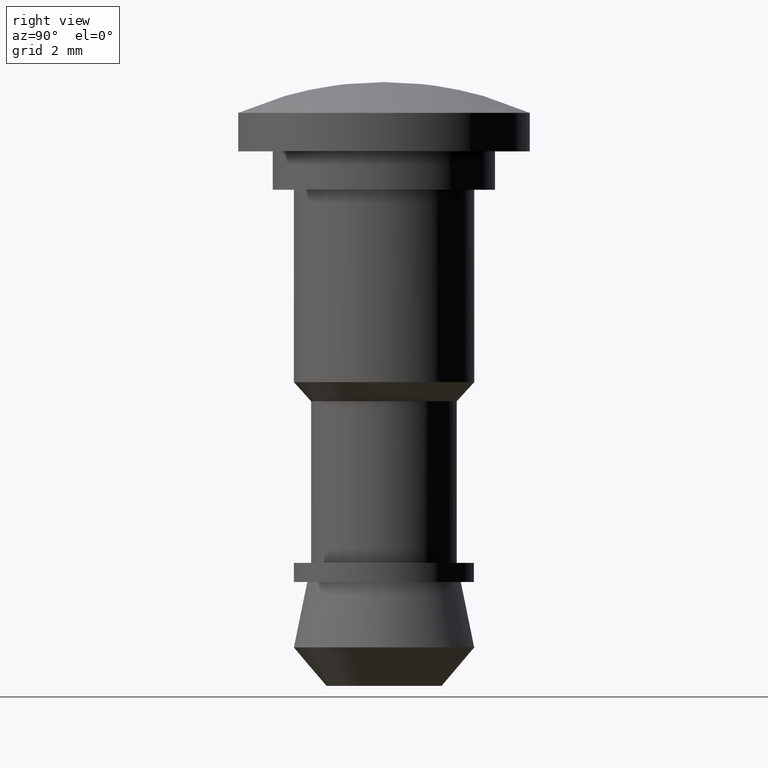
[diagram: clean part render]
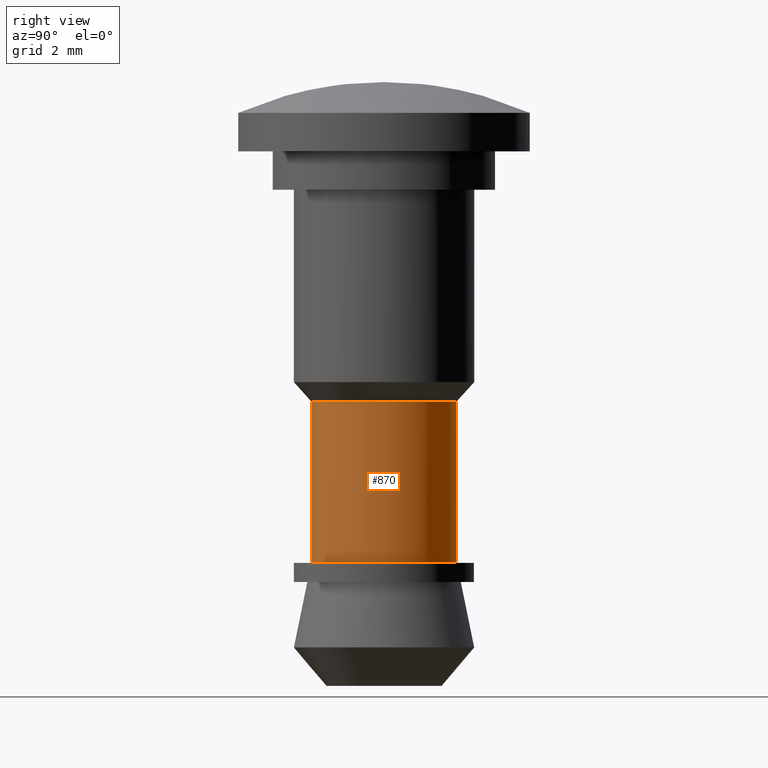
[diagram: same view with one face highlighted and labeled with its STEP entity id]
A machine part, right view. The second image highlights one B-rep face of the part: STEP entity #870.
In plain terms, the highlighted face is a freeform B-spline surface patch.
Its self-contained STEP definition (entity closure, byte-faithful):
#662=CARTESIAN_POINT('',(-0.224265045859108,1.886718100089627,-5.499999999999900));
#663=VERTEX_POINT('',#662);
#664=CARTESIAN_POINT('',(1.601776092838845,1.021916507554000,-5.499999999999479));
#665=VERTEX_POINT('',#664);
#666=CARTESIAN_POINT('',(-0.224265045859108,1.886718100089627,-5.499999999999900));
#667=CARTESIAN_POINT('',(-0.112525827350015,1.900000000000000,-5.499999999999900));
#668=CARTESIAN_POINT('',(0.0,1.900000000000000,-5.499999999999900));
#669=CARTESIAN_POINT('',(1.041567946418680,1.900000000000000,-5.499999999999901));
#670=CARTESIAN_POINT('',(1.601776092838845,1.021916507554000,-5.499999999999479));
#678=(BOUNDED_CURVE()B_SPLINE_CURVE(2,(#666,#667,#668,#669,#670),.UNSPECIFIED.,.F.,.U.)B_SPLINE_CURVE_WITH_KNOTS((3,2,3),(0.229562473513626,0.250000000000000,0.407950112626424),.UNSPECIFIED.)CURVE()GEOMETRIC_REPRESENTATION_ITEM()RATIONAL_B_SPLINE_CURVE((0.956026754183929,0.976055948331283,1.0,0.814949932403597,0.863729296954228))REPRESENTATION_ITEM(''));
#679=EDGE_CURVE('',#663,#665,#678,.T.);
#696=CARTESIAN_POINT('',(0.115992225165436,-1.896456116998537,-5.499999999999899));
#697=VERTEX_POINT('',#696);
#713=CARTESIAN_POINT('',(0.149072281913645,-1.894142934094411,-5.499999999995593));
#714=VERTEX_POINT('',#713);
#715=CARTESIAN_POINT('',(0.149072281913645,-1.894142934094411,-5.499999999995593));
#716=CARTESIAN_POINT('',(0.132542346999896,-1.895443868182470,-5.499999999999899));
#717=CARTESIAN_POINT('',(0.115992225165436,-1.896456116998537,-5.499999999999899));
#725=(BOUNDED_CURVE()B_SPLINE_CURVE(2,(#715,#716,#717),.UNSPECIFIED.,.F.,.U.)B_SPLINE_CURVE_WITH_KNOTS((3,3),(0.736331300627258,0.739332962233015),.UNSPECIFIED.)CURVE()GEOMETRIC_REPRESENTATION_ITEM()RATIONAL_B_SPLINE_CURVE((0.969723356160319,0.972855475550105,0.976072041654013))REPRESENTATION_ITEM(''));
#726=EDGE_CURVE('',#714,#697,#725,.T.);
#763=CARTESIAN_POINT('',(1.900000000000000,0.0,-5.499999999999900));
#764=VERTEX_POINT('',#763);
#765=CARTESIAN_POINT('',(1.601776092838845,1.021916507554000,-5.499999999999479));
#766=CARTESIAN_POINT('',(1.900000000000000,0.554473305228338,-5.499999999999899));
#767=CARTESIAN_POINT('',(1.900000000000000,0.0,-5.499999999999900));
#775=(BOUNDED_CURVE()B_SPLINE_CURVE(2,(#765,#766,#767),.UNSPECIFIED.,.F.,.U.)B_SPLINE_CURVE_WITH_KNOTS((3,3),(0.407950112626424,0.500000000000000),.UNSPECIFIED.)CURVE()GEOMETRIC_REPRESENTATION_ITEM()RATIONAL_B_SPLINE_CURVE((0.863729296954228,0.892156848782951,1.0))REPRESENTATION_ITEM(''));
#776=EDGE_CURVE('',#665,#764,#775,.T.);
#782=CARTESIAN_POINT('',(1.900000000000000,0.0,-5.499999999999900));
#783=CARTESIAN_POINT('',(1.900000000000000,-1.756341934093969,-5.499999999999900));
#784=CARTESIAN_POINT('',(0.149072281913645,-1.894142934094411,-5.499999999995593));
#792=(BOUNDED_CURVE()B_SPLINE_CURVE(2,(#782,#783,#784),.UNSPECIFIED.,.F.,.U.)B_SPLINE_CURVE_WITH_KNOTS((3,3),(0.500000000000000,0.736331300627257),.UNSPECIFIED.)CURVE()GEOMETRIC_REPRESENTATION_ITEM()RATIONAL_B_SPLINE_CURVE((1.0,0.723120658611652,0.969723356160317))REPRESENTATION_ITEM(''));
#793=EDGE_CURVE('',#764,#714,#792,.T.);
#798=CARTESIAN_POINT('',(-0.224265045847841,1.886718100090966,-5.394999999999897));
#799=CARTESIAN_POINT('',(-0.170267984412158,1.893136469352351,-5.394999999999896));
#800=CARTESIAN_POINT('',(-0.115992225116228,1.896456117001547,-5.394999999999896));
#801=CARTESIAN_POINT('',(1.780463891885319,2.012448342117775,-5.394999999999895));
#802=CARTESIAN_POINT('',(1.896456117001547,0.115992225116228,-5.394999999999896));
#803=CARTESIAN_POINT('',(2.012448342117775,-1.780463891885319,-5.394999999999895));
#804=CARTESIAN_POINT('',(0.115992225116228,-1.896456117001547,-5.394999999999896));
#805=CARTESIAN_POINT('',(-0.224265045847841,1.886718100090966,-9.807625000000007));
#806=CARTESIAN_POINT('',(-0.170267984412158,1.893136469352351,-9.807625000000005));
#807=CARTESIAN_POINT('',(-0.115992225116228,1.896456117001547,-9.807625000000005));
#808=CARTESIAN_POINT('',(1.780463891885319,2.012448342117775,-9.807625000000005));
#809=CARTESIAN_POINT('',(1.896456117001547,0.115992225116228,-9.807625000000005));
#810=CARTESIAN_POINT('',(2.012448342117775,-1.780463891885319,-9.807625000000005));
#811=CARTESIAN_POINT('',(0.115992225116228,-1.896456117001547,-9.807625000000005));
#819=(BOUNDED_SURFACE()B_SPLINE_SURFACE(2,1,((#798,#805),(#799,#806),(#800,#807),(#801,#808),(#802,#809),(#803,#810),(#804,#811)),.UNSPECIFIED.,.F.,.F.,.U.)B_SPLINE_SURFACE_WITH_KNOTS((3,2,2,3),(2,2),(0.0,0.125920922961421,3.273943996996943,6.421967071032465),(0.0,4.412625000000110),.UNSPECIFIED.)GEOMETRIC_REPRESENTATION_ITEM()RATIONAL_B_SPLINE_SURFACE(((0.977505800795127,0.977505800795127),(0.988284271247462,0.988284271247462),(1.0,1.0),(0.707106781186548,0.707106781186548),(1.0,1.0),(0.707106781186548,0.707106781186548),(1.0,1.0)))REPRESENTATION_ITEM('')SURFACE());
#820=ORIENTED_EDGE('',*,*,#679,.T.);
#821=ORIENTED_EDGE('',*,*,#776,.T.);
#822=ORIENTED_EDGE('',*,*,#793,.T.);
#823=ORIENTED_EDGE('',*,*,#726,.T.);
#824=CARTESIAN_POINT('',(0.115992225165436,-1.896456116998537,-9.700000000000001));
#825=VERTEX_POINT('',#824);
#826=CARTESIAN_POINT('',(0.115992225165436,-1.896456116998537,-5.499999999999899));
#827=CARTESIAN_POINT('',(0.115992225165436,-1.896456116998537,-9.700000000000001));
#828=QUASI_UNIFORM_CURVE('',1,(#826,#827),.UNSPECIFIED.,.F.,.U.);
#829=EDGE_CURVE('',#697,#825,#828,.T.);
#830=ORIENTED_EDGE('',*,*,#829,.T.);
#831=CARTESIAN_POINT('',(1.900000000000000,0.0,-9.700000000000001));
#832=VERTEX_POINT('',#831);
#833=CARTESIAN_POINT('',(1.900000000000000,0.0,-9.700000000000001));
#834=CARTESIAN_POINT('',(1.900000000000000,-1.787341527027896,-9.700000000000001));
#835=CARTESIAN_POINT('',(0.115992225165436,-1.896456116998537,-9.700000000000001));
#843=(BOUNDED_CURVE()B_SPLINE_CURVE(2,(#833,#834,#835),.UNSPECIFIED.,.F.,.U.)B_SPLINE_CURVE_WITH_KNOTS((3,3),(0.500000000000000,0.739332962233014),.UNSPECIFIED.)CURVE()GEOMETRIC_REPRESENTATION_ITEM()RATIONAL_B_SPLINE_CURVE((1.0,0.719603993293656,0.976072041654012))REPRESENTATION_ITEM(''));
#844=EDGE_CURVE('',#832,#825,#843,.T.);
#845=ORIENTED_EDGE('',*,*,#844,.F.);
#846=CARTESIAN_POINT('',(-0.224265045859108,1.886718100089627,-9.700000000000001));
#847=VERTEX_POINT('',#846);
#848=CARTESIAN_POINT('',(-0.224265045859108,1.886718100089627,-9.700000000000001));
#849=CARTESIAN_POINT('',(-0.112525827350015,1.900000000000000,-9.699999999999999));
#850=CARTESIAN_POINT('',(0.0,1.900000000000000,-9.700000000000001));
#851=CARTESIAN_POINT('',(1.900000000000000,1.900000000000000,-9.700000000000001));
#852=CARTESIAN_POINT('',(1.900000000000000,0.0,-9.700000000000001));
#860=(BOUNDED_CURVE()B_SPLINE_CURVE(2,(#848,#849,#850,#851,#852),.UNSPECIFIED.,.F.,.U.)B_SPLINE_CURVE_WITH_KNOTS((3,2,3),(0.229562473513626,0.250000000000000,0.500000000000000),.UNSPECIFIED.)CURVE()GEOMETRIC_REPRESENTATION_ITEM()RATIONAL_B_SPLINE_CURVE((0.956026754183930,0.976055948331283,1.0,0.707106781186547,1.0))REPRESENTATION_ITEM(''));
#861=EDGE_CURVE('',#847,#832,#860,.T.);
#862=ORIENTED_EDGE('',*,*,#861,.F.);
#863=CARTESIAN_POINT('',(-0.224265045859108,1.886718100089627,-5.499999999999900));
#864=CARTESIAN_POINT('',(-0.224265045859108,1.886718100089627,-9.700000000000001));
#865=QUASI_UNIFORM_CURVE('',1,(#863,#864),.UNSPECIFIED.,.F.,.U.);
#866=EDGE_CURVE('',#663,#847,#865,.T.);
#867=ORIENTED_EDGE('',*,*,#866,.F.);
#868=EDGE_LOOP('',(#820,#821,#822,#823,#830,#845,#862,#867));
#869=FACE_OUTER_BOUND('',#868,.T.);
#870=ADVANCED_FACE('',(#869),#819,.T.);